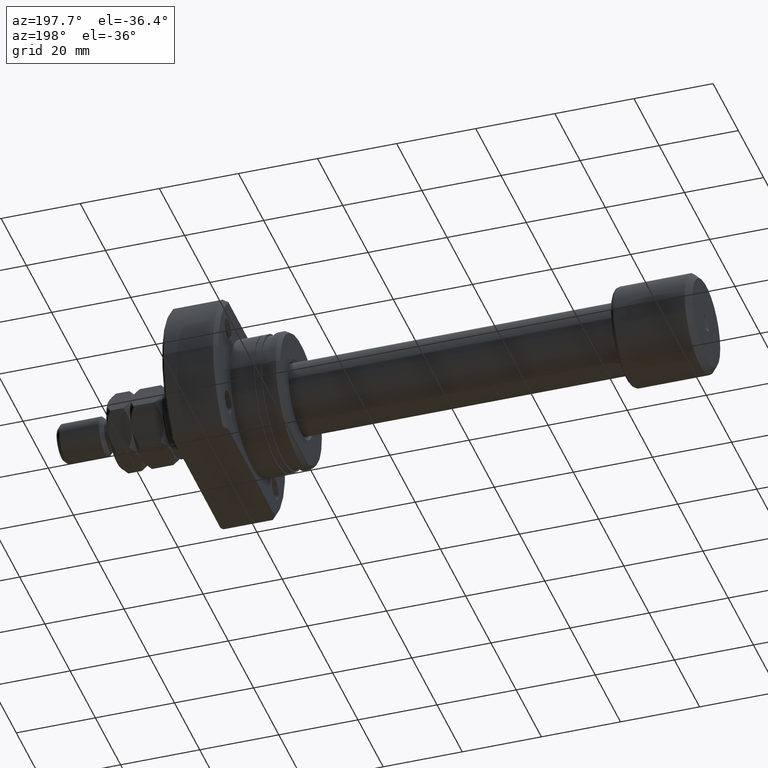
[diagram: clean part render]
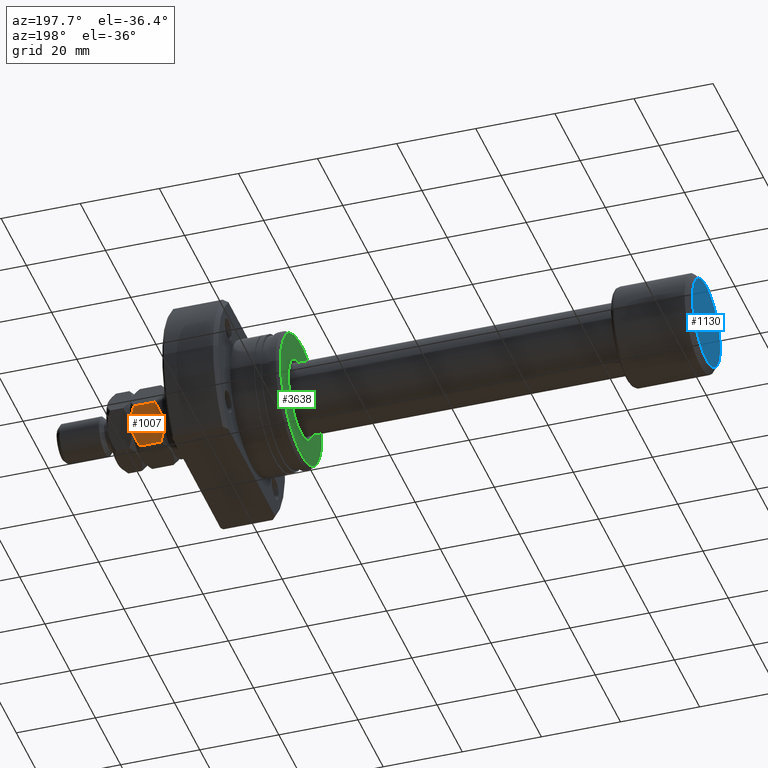
[diagram: same view with three faces highlighted in distinct colors, each labeled with its STEP entity id]
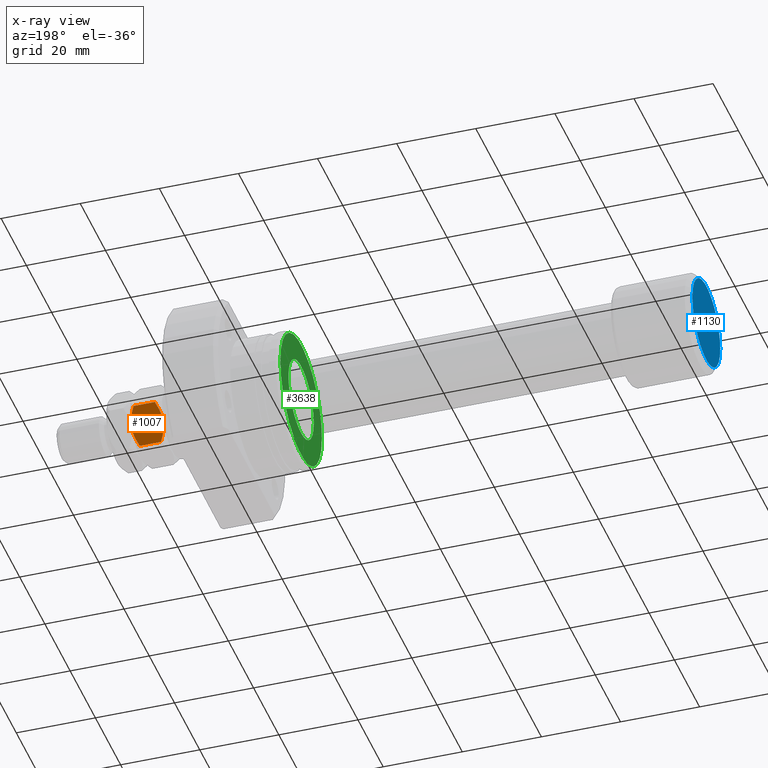
[diagram: x-ray of the same camera — body ghosted, the three highlighted faces saturated]
A machine part, auxiliary view with three faces highlighted in distinct colors.
The next image is the same camera in x-ray (body ghosted, the three faces saturated) — at least one of them is partly hidden behind the body in this view.
Their STEP definitions:

[orange] entity #1007 — the highlighted planar face has unit normal (0, -0.866, 0.5).
#153 = CARTESIAN_POINT ( 'NONE',  ( 1.348005192929855989, 9.036683415216572257, 0.6032092124201233752 ) ) ;
#202 = VERTEX_POINT ( 'NONE', #328 ) ;
#214 = DIRECTION ( 'NONE',  ( 0.8660254037844389297, -0.4999999999999995559, 0.000000000000000000 ) ) ;
#273 = CARTESIAN_POINT ( 'NONE',  ( 8.500000000000001776, 4.907477288111821601, 8.000000000000000000 ) ) ;
#328 = CARTESIAN_POINT ( 'NONE',  ( 4.249999999999996447, 7.361215932167731957, 0.000000000000000000 ) ) ;
#429 = CARTESIAN_POINT ( 'NONE',  ( 4.249999999999998224, 7.361215932167725740, 8.000000000000000000 ) ) ;
#546 = CARTESIAN_POINT ( 'NONE',  ( 3.510754653168325135, 7.788019432158174382, 8.000000000000005329 ) ) ;
#552 = CARTESIAN_POINT ( 'NONE',  ( 7.834310611062749174, 5.291813236011419619, 0.9306186283239317181 ) ) ;
#600 = EDGE_LOOP ( 'NONE', ( #1134, #668, #3624, #875, #1516, #1680 ) ) ;
#627 = CARTESIAN_POINT ( 'NONE',  ( 8.500000000000001776, 4.907477288111821601, 1.314954576223634763 ) ) ;
#668 = ORIENTED_EDGE ( 'NONE', *, *, #3463, .F. ) ;
#784 = EDGE_CURVE ( 'NONE', #902, #3524, #1445, .T. ) ;
#867 = B_SPLINE_CURVE_WITH_KNOTS ( 'NONE', 3,
 ( #2755, #546, #3857, #2037, #3334, #1103 ),
 .UNSPECIFIED., .F., .F.,
 ( 4, 2, 4 ),
 ( 0.005087299150080239890, 0.007613005268011860047, 0.01013871138594348020 ),
 .UNSPECIFIED. ) ;
#875 = ORIENTED_EDGE ( 'NONE', *, *, #784, .F. ) ;
#902 = VERTEX_POINT ( 'NONE', #1718 ) ;
#933 = EDGE_CURVE ( 'NONE', #902, #1072, #2509, .T. ) ;
#1007 = ADVANCED_FACE ( 'NONE', ( #2097 ), #4661, .F. ) ;
#1026 = B_SPLINE_CURVE_WITH_KNOTS ( 'NONE', 3,
 ( #1312, #3822, #3885, #2390, #552, #2720 ),
 .UNSPECIFIED., .F., .F.,
 ( 4, 2, 4 ),
 ( 0.005087299150080233819, 0.007613005268011856577, 0.01013871138594348020 ),
 .UNSPECIFIED. ) ;
#1072 = VERTEX_POINT ( 'NONE', #627 ) ;
#1077 = DIRECTION ( 'NONE',  ( -0.000000000000000000, -0.000000000000000000, -1.000000000000000000 ) ) ;
#1103 = CARTESIAN_POINT ( 'NONE',  ( -2.175848833159079736E-16, 9.814954576223636096, 6.685045423776372786 ) ) ;
#1134 = ORIENTED_EDGE ( 'NONE', *, *, #1728, .F. ) ;
#1211 = CARTESIAN_POINT ( 'NONE',  ( 7.151994807070148674, 5.685748449118888992, 7.396790787579876181 ) ) ;
#1268 = LINE ( 'NONE', #4620, #3380 ) ;
#1312 = CARTESIAN_POINT ( 'NONE',  ( 4.249999999999996447, 7.361215932167731957, 0.000000000000000000 ) ) ;
#1425 = CARTESIAN_POINT ( 'NONE',  ( 4.249999999999998224, 7.361215932167725740, 8.000000000000000000 ) ) ;
#1445 = B_SPLINE_CURVE_WITH_KNOTS ( 'NONE', 3,
 ( #3000, #3750, #1211, #4624, #4474, #4489, #1967, #429 ),
 .UNSPECIFIED., .F., .F.,
 ( 4, 2, 2, 4 ),
 ( 2.544313836659951363E-07, 0.002543776790731952769, 0.003815537970406096113, 0.005087299150080239890 ),
 .UNSPECIFIED. ) ;
#1516 = ORIENTED_EDGE ( 'NONE', *, *, #933, .T. ) ;
#1587 = VECTOR ( 'NONE', #1077, 1000.000000000000000 ) ;
#1650 = CARTESIAN_POINT ( 'NONE',  ( 2.407069963478076779, 8.425232084851304037, 0.2536240893246513584 ) ) ;
#1680 = ORIENTED_EDGE ( 'NONE', *, *, #3862, .F. ) ;
#1718 = CARTESIAN_POINT ( 'NONE',  ( 8.500000000000001776, 4.907477288111821601, 6.685045423776367457 ) ) ;
#1728 = EDGE_CURVE ( 'NONE', #3168, #202, #1791, .T. ) ;
#1791 = B_SPLINE_CURVE_WITH_KNOTS ( 'NONE', 3,
 ( #2465, #3923, #153, #1650, #4774, #2925, #4004, #3592 ),
 .UNSPECIFIED., .F., .F.,
 ( 4, 2, 2, 4 ),
 ( 2.544313836669062791E-07, 0.002543776790731949299, 0.003815537970406091776, 0.005087299150080233819 ),
 .UNSPECIFIED. ) ;
#1800 = CARTESIAN_POINT ( 'NONE',  ( 1.960053746949402388E-16, 9.814954576223636096, 1.314954576223628546 ) ) ;
#1822 = CARTESIAN_POINT ( 'NONE',  ( -2.175848833159079736E-16, 9.814954576223636096, 6.685045423776372786 ) ) ;
#1967 = CARTESIAN_POINT ( 'NONE',  ( 4.622229978650560511, 7.146308853793381211, 8.000000000000003553 ) ) ;
#2037 = CARTESIAN_POINT ( 'NONE',  ( 1.350892646810553321, 9.035016342941274203, 7.399061587263881634 ) ) ;
#2097 = FACE_OUTER_BOUND ( 'NONE', #600, .T. ) ;
#2390 = CARTESIAN_POINT ( 'NONE',  ( 7.149107353189447345, 5.687415521394179940, 0.6009384127361230288 ) ) ;
#2465 = CARTESIAN_POINT ( 'NONE',  ( 1.960053746949402388E-16, 9.814954576223636096, 1.314954576223628546 ) ) ;
#2509 = LINE ( 'NONE', #273, #1587 ) ;
#2720 = CARTESIAN_POINT ( 'NONE',  ( 8.500000000000001776, 4.907477288111821601, 1.314954576223634763 ) ) ;
#2755 = CARTESIAN_POINT ( 'NONE',  ( 4.249999999999998224, 7.361215932167725740, 8.000000000000000000 ) ) ;
#2836 = CARTESIAN_POINT ( 'NONE',  ( 8.500000000000001776, 4.907477288111821601, 8.000000000000000000 ) ) ;
#2897 = AXIS2_PLACEMENT_3D ( 'NONE', #2836, #3173, #214 ) ;
#2925 = CARTESIAN_POINT ( 'NONE',  ( 3.499970675361007810, 7.794245564648166535, 0.03373674959836577697 ) ) ;
#3000 = CARTESIAN_POINT ( 'NONE',  ( 8.500000000000001776, 4.907477288111821601, 6.685045423776367457 ) ) ;
#3016 = EDGE_CURVE ( 'NONE', #3524, #4363, #867, .T. ) ;
#3126 = DIRECTION ( 'NONE',  ( -0.000000000000000000, -0.000000000000000000, -1.000000000000000000 ) ) ;
#3168 = VERTEX_POINT ( 'NONE', #1800 ) ;
#3173 = DIRECTION ( 'NONE',  ( -0.4999999999999995559, -0.8660254037844389297, 0.000000000000000000 ) ) ;
#3334 = CARTESIAN_POINT ( 'NONE',  ( 0.6656893889372520468, 9.430618628324037189, 7.069381371676074721 ) ) ;
#3380 = VECTOR ( 'NONE', #3126, 1000.000000000000000 ) ;
#3463 = EDGE_CURVE ( 'NONE', #4363, #3168, #1268, .T. ) ;
#3524 = VERTEX_POINT ( 'NONE', #1425 ) ;
#3592 = CARTESIAN_POINT ( 'NONE',  ( 4.249999999999996447, 7.361215932167731957, 0.000000000000000000 ) ) ;
#3624 = ORIENTED_EDGE ( 'NONE', *, *, #3016, .F. ) ;
#3750 = CARTESIAN_POINT ( 'NONE',  ( 7.833539178395722224, 5.292258622869394635, 7.069826758533938715 ) ) ;
#3822 = CARTESIAN_POINT ( 'NONE',  ( 4.989245346831671313, 6.934412432177284202, -1.204480850995614688E-15 ) ) ;
#3857 = CARTESIAN_POINT ( 'NONE',  ( 2.784079206026084830, 8.207565697179239450, 7.869479712616790579 ) ) ;
#3862 = EDGE_CURVE ( 'NONE', #202, #1072, #1026, .T. ) ;
#3885 = CARTESIAN_POINT ( 'NONE',  ( 5.715920793973914726, 6.514866167156221799, 0.1305202873832148891 ) ) ;
#3923 = CARTESIAN_POINT ( 'NONE',  ( 0.6664608216042851030, 9.430173241466063061, 0.9301732414660577319 ) ) ;
#4004 = CARTESIAN_POINT ( 'NONE',  ( 3.877770021349439045, 7.576123010542078262, -1.325606562452980031E-15 ) ) ;
#4363 = VERTEX_POINT ( 'NONE', #1822 ) ;
#4474 = CARTESIAN_POINT ( 'NONE',  ( 5.733718739115172269, 6.504590518737892957, 7.839178292058171849 ) ) ;
#4489 = CARTESIAN_POINT ( 'NONE',  ( 5.000029324638990857, 6.928186299687297378, 7.966263250401637741 ) ) ;
#4620 = CARTESIAN_POINT ( 'NONE',  ( 0.000000000000000000, 9.814954576223636096, 8.000000000000000000 ) ) ;
#4624 = CARTESIAN_POINT ( 'NONE',  ( 6.092930036521924109, 6.297199779484155435, 7.746375910675346255 ) ) ;
#4661 = PLANE ( 'NONE',  #2897 ) ;
#4774 = CARTESIAN_POINT ( 'NONE',  ( 2.766281260884825954, 8.217841345597568292, 0.1608217079418317041 ) ) ;

[blue] entity #1130 — the highlighted planar face has unit normal (-1, -0, 0).
#42 = AXIS2_PLACEMENT_3D ( 'NONE', #4291, #983, #2017 ) ;
#111 = CIRCLE ( 'NONE', #1829, 11.00000000000000178 ) ;
#310 = ORIENTED_EDGE ( 'NONE', *, *, #2859, .T. ) ;
#412 = CARTESIAN_POINT ( 'NONE',  ( 6.147309118172456842E-16, 0.000000000000000000, 0.000000000000000000 ) ) ;
#524 = EDGE_LOOP ( 'NONE', ( #2066, #310 ) ) ;
#544 = EDGE_LOOP ( 'NONE', ( #3086, #3799 ) ) ;
#983 = DIRECTION ( 'NONE',  ( 1.000000000000000000, 1.069542322069065801E-17, 0.000000000000000000 ) ) ;
#1079 = DIRECTION ( 'NONE',  ( -1.000000000000000000, -1.069542322069065801E-17, -0.000000000000000000 ) ) ;
#1130 = ADVANCED_FACE ( 'NONE', ( #1616, #2766 ), #2389, .T. ) ;
#1609 = AXIS2_PLACEMENT_3D ( 'NONE', #2732, #4190, #2640 ) ;
#1616 = FACE_BOUND ( 'NONE', #544, .T. ) ;
#1627 = VERTEX_POINT ( 'NONE', #2798 ) ;
#1790 = EDGE_CURVE ( 'NONE', #3719, #2267, #111, .T. ) ;
#1829 = AXIS2_PLACEMENT_3D ( 'NONE', #1843, #1079, #4045 ) ;
#1843 = CARTESIAN_POINT ( 'NONE',  ( 1.229461823634491368E-15, 1.314961453745302249E-32, 0.000000000000000000 ) ) ;
#1913 = DIRECTION ( 'NONE',  ( 1.000000000000000000, 1.069542322069065801E-17, 0.000000000000000000 ) ) ;
#2017 = DIRECTION ( 'NONE',  ( 1.069542322069063644E-17, -1.000000000000000000, 0.000000000000000000 ) ) ;
#2066 = ORIENTED_EDGE ( 'NONE', *, *, #1790, .T. ) ;
#2267 = VERTEX_POINT ( 'NONE', #4667 ) ;
#2272 = CARTESIAN_POINT ( 'NONE',  ( 1.111812168206894135E-15, 11.00000000000000178, 0.000000000000000000 ) ) ;
#2389 = PLANE ( 'NONE',  #4435 ) ;
#2640 = DIRECTION ( 'NONE',  ( 1.069542322069065647E-17, -1.000000000000000000, 0.000000000000000000 ) ) ;
#2679 = AXIS2_PLACEMENT_3D ( 'NONE', #412, #1913, #3151 ) ;
#2732 = CARTESIAN_POINT ( 'NONE',  ( 1.229461823634491368E-15, 1.314961453745302249E-32, 0.000000000000000000 ) ) ;
#2766 = FACE_OUTER_BOUND ( 'NONE', #524, .T. ) ;
#2798 = CARTESIAN_POINT ( 'NONE',  ( 6.147309118172456842E-16, 2.541142108230784202E-16, -2.075000000000021494 ) ) ;
#2859 = EDGE_CURVE ( 'NONE', #2267, #3719, #3683, .T. ) ;
#2983 = EDGE_CURVE ( 'NONE', #1627, #3943, #3601, .T. ) ;
#3086 = ORIENTED_EDGE ( 'NONE', *, *, #3783, .T. ) ;
#3098 = DIRECTION ( 'NONE',  ( -1.000000000000000000, -1.069542322069065801E-17, 0.000000000000000000 ) ) ;
#3151 = DIRECTION ( 'NONE',  ( 1.069542322069063644E-17, -1.000000000000000000, 0.000000000000000000 ) ) ;
#3438 = DIRECTION ( 'NONE',  ( 1.069542322069065801E-17, -1.000000000000000000, 0.000000000000000000 ) ) ;
#3601 = CIRCLE ( 'NONE', #42, 2.075000000000021494 ) ;
#3683 = CIRCLE ( 'NONE', #1609, 11.00000000000000178 ) ;
#3697 = CIRCLE ( 'NONE', #2679, 2.075000000000021494 ) ;
#3719 = VERTEX_POINT ( 'NONE', #2272 ) ;
#3783 = EDGE_CURVE ( 'NONE', #3943, #1627, #3697, .T. ) ;
#3799 = ORIENTED_EDGE ( 'NONE', *, *, #2983, .T. ) ;
#3943 = VERTEX_POINT ( 'NONE', #4302 ) ;
#4045 = DIRECTION ( 'NONE',  ( 1.069542322069065647E-17, -1.000000000000000000, 0.000000000000000000 ) ) ;
#4173 = CARTESIAN_POINT ( 'NONE',  ( 6.147309118172456842E-16, 6.574807268726511244E-33, 0.000000000000000000 ) ) ;
#4190 = DIRECTION ( 'NONE',  ( -1.000000000000000000, -1.069542322069065801E-17, -0.000000000000000000 ) ) ;
#4291 = CARTESIAN_POINT ( 'NONE',  ( 6.147309118172456842E-16, 0.000000000000000000, 0.000000000000000000 ) ) ;
#4302 = CARTESIAN_POINT ( 'NONE',  ( 6.147309118172456842E-16, 0.000000000000000000, 2.075000000000021494 ) ) ;
#4435 = AXIS2_PLACEMENT_3D ( 'NONE', #4173, #3098, #3438 ) ;
#4667 = CARTESIAN_POINT ( 'NONE',  ( 1.347111479062088602E-15, -11.00000000000000178, 1.438959988998140160E-15 ) ) ;

[green] entity #3638 — the highlighted planar face has unit normal (1, 0, 0).
#438 = AXIS2_PLACEMENT_3D ( 'NONE', #3274, #4741, #2917 ) ;
#899 = DIRECTION ( 'NONE',  ( -9.242617352055507008E-18, 1.000000000000000000, 0.000000000000000000 ) ) ;
#919 = DIRECTION ( 'NONE',  ( 1.000000000000000000, 9.242617352055502386E-18, -0.000000000000000000 ) ) ;
#921 = DIRECTION ( 'NONE',  ( 1.000000000000000000, 9.242617352055502386E-18, -0.000000000000000000 ) ) ;
#930 = VERTEX_POINT ( 'NONE', #4643 ) ;
#943 = CARTESIAN_POINT ( 'NONE',  ( 9.297031376334609942E-16, 7.380088410503559366E-29, 0.000000000000000000 ) ) ;
#1218 = CARTESIAN_POINT ( 'NONE',  ( 9.297031376334609942E-16, -9.999999999999717559, 0.000000000000000000 ) ) ;
#1232 = ORIENTED_EDGE ( 'NONE', *, *, #3467, .T. ) ;
#1354 = EDGE_LOOP ( 'NONE', ( #2020, #2376 ) ) ;
#1608 = AXIS2_PLACEMENT_3D ( 'NONE', #4165, #2726, #4505 ) ;
#1865 = FACE_OUTER_BOUND ( 'NONE', #1354, .T. ) ;
#2020 = ORIENTED_EDGE ( 'NONE', *, *, #3430, .F. ) ;
#2041 = EDGE_CURVE ( 'NONE', #930, #4102, #2595, .T. ) ;
#2157 = AXIS2_PLACEMENT_3D ( 'NONE', #3201, #921, #2817 ) ;
#2224 = FACE_BOUND ( 'NONE', #4487, .T. ) ;
#2240 = CIRCLE ( 'NONE', #3833, 10.00000000000029310 ) ;
#2376 = ORIENTED_EDGE ( 'NONE', *, *, #4550, .F. ) ;
#2520 = AXIS2_PLACEMENT_3D ( 'NONE', #4278, #919, #899 ) ;
#2559 = PLANE ( 'NONE',  #438 ) ;
#2595 = CIRCLE ( 'NONE', #2520, 10.00000000000029310 ) ;
#2713 = CARTESIAN_POINT ( 'NONE',  ( 3.317658684584896851E-15, 16.42264973081037027, 0.000000000000000000 ) ) ;
#2726 = DIRECTION ( 'NONE',  ( 1.000000000000000000, 9.242617352055502386E-18, -0.000000000000000000 ) ) ;
#2817 = DIRECTION ( 'NONE',  ( -9.242617352055494682E-18, 1.000000000000000000, 0.000000000000000000 ) ) ;
#2850 = VERTEX_POINT ( 'NONE', #2713 ) ;
#2917 = DIRECTION ( 'NONE',  ( -9.242617352055502386E-18, 1.000000000000000000, 0.000000000000000000 ) ) ;
#3201 = CARTESIAN_POINT ( 'NONE',  ( 3.469446951953614189E-15, 4.814824860968089633E-32, 0.000000000000000000 ) ) ;
#3274 = CARTESIAN_POINT ( 'NONE',  ( 9.297031376334383144E-16, 8.592890352151261741E-33, 0.000000000000000000 ) ) ;
#3430 = EDGE_CURVE ( 'NONE', #2850, #4185, #3839, .T. ) ;
#3467 = EDGE_CURVE ( 'NONE', #4102, #930, #2240, .T. ) ;
#3638 = ADVANCED_FACE ( 'NONE', ( #2224, #1865 ), #2559, .F. ) ;
#3682 = CIRCLE ( 'NONE', #1608, 16.42264973081037027 ) ;
#3833 = AXIS2_PLACEMENT_3D ( 'NONE', #943, #4254, #3890 ) ;
#3839 = CIRCLE ( 'NONE', #2157, 16.42264973081037027 ) ;
#3890 = DIRECTION ( 'NONE',  ( -9.242617352055507008E-18, 1.000000000000000000, 0.000000000000000000 ) ) ;
#4047 = ORIENTED_EDGE ( 'NONE', *, *, #2041, .T. ) ;
#4102 = VERTEX_POINT ( 'NONE', #1218 ) ;
#4165 = CARTESIAN_POINT ( 'NONE',  ( 3.469446951953614189E-15, 4.814824860968089633E-32, 0.000000000000000000 ) ) ;
#4185 = VERTEX_POINT ( 'NONE', #4476 ) ;
#4254 = DIRECTION ( 'NONE',  ( 1.000000000000000000, 9.242617352055502386E-18, -0.000000000000000000 ) ) ;
#4278 = CARTESIAN_POINT ( 'NONE',  ( 9.297031376334609942E-16, 7.380088410503559366E-29, 0.000000000000000000 ) ) ;
#4476 = CARTESIAN_POINT ( 'NONE',  ( 3.621235219322331921E-15, -16.42264973081037027, 2.046547050593003144E-15 ) ) ;
#4487 = EDGE_LOOP ( 'NONE', ( #1232, #4047 ) ) ;
#4505 = DIRECTION ( 'NONE',  ( -9.242617352055494682E-18, 1.000000000000000000, 0.000000000000000000 ) ) ;
#4550 = EDGE_CURVE ( 'NONE', #4185, #2850, #3682, .T. ) ;
#4643 = CARTESIAN_POINT ( 'NONE',  ( 9.297031376334609942E-16, 10.00000000000029310, 1.224646799147388952E-15 ) ) ;
#4741 = DIRECTION ( 'NONE',  ( 1.000000000000000000, 9.242617352055502386E-18, -0.000000000000000000 ) ) ;